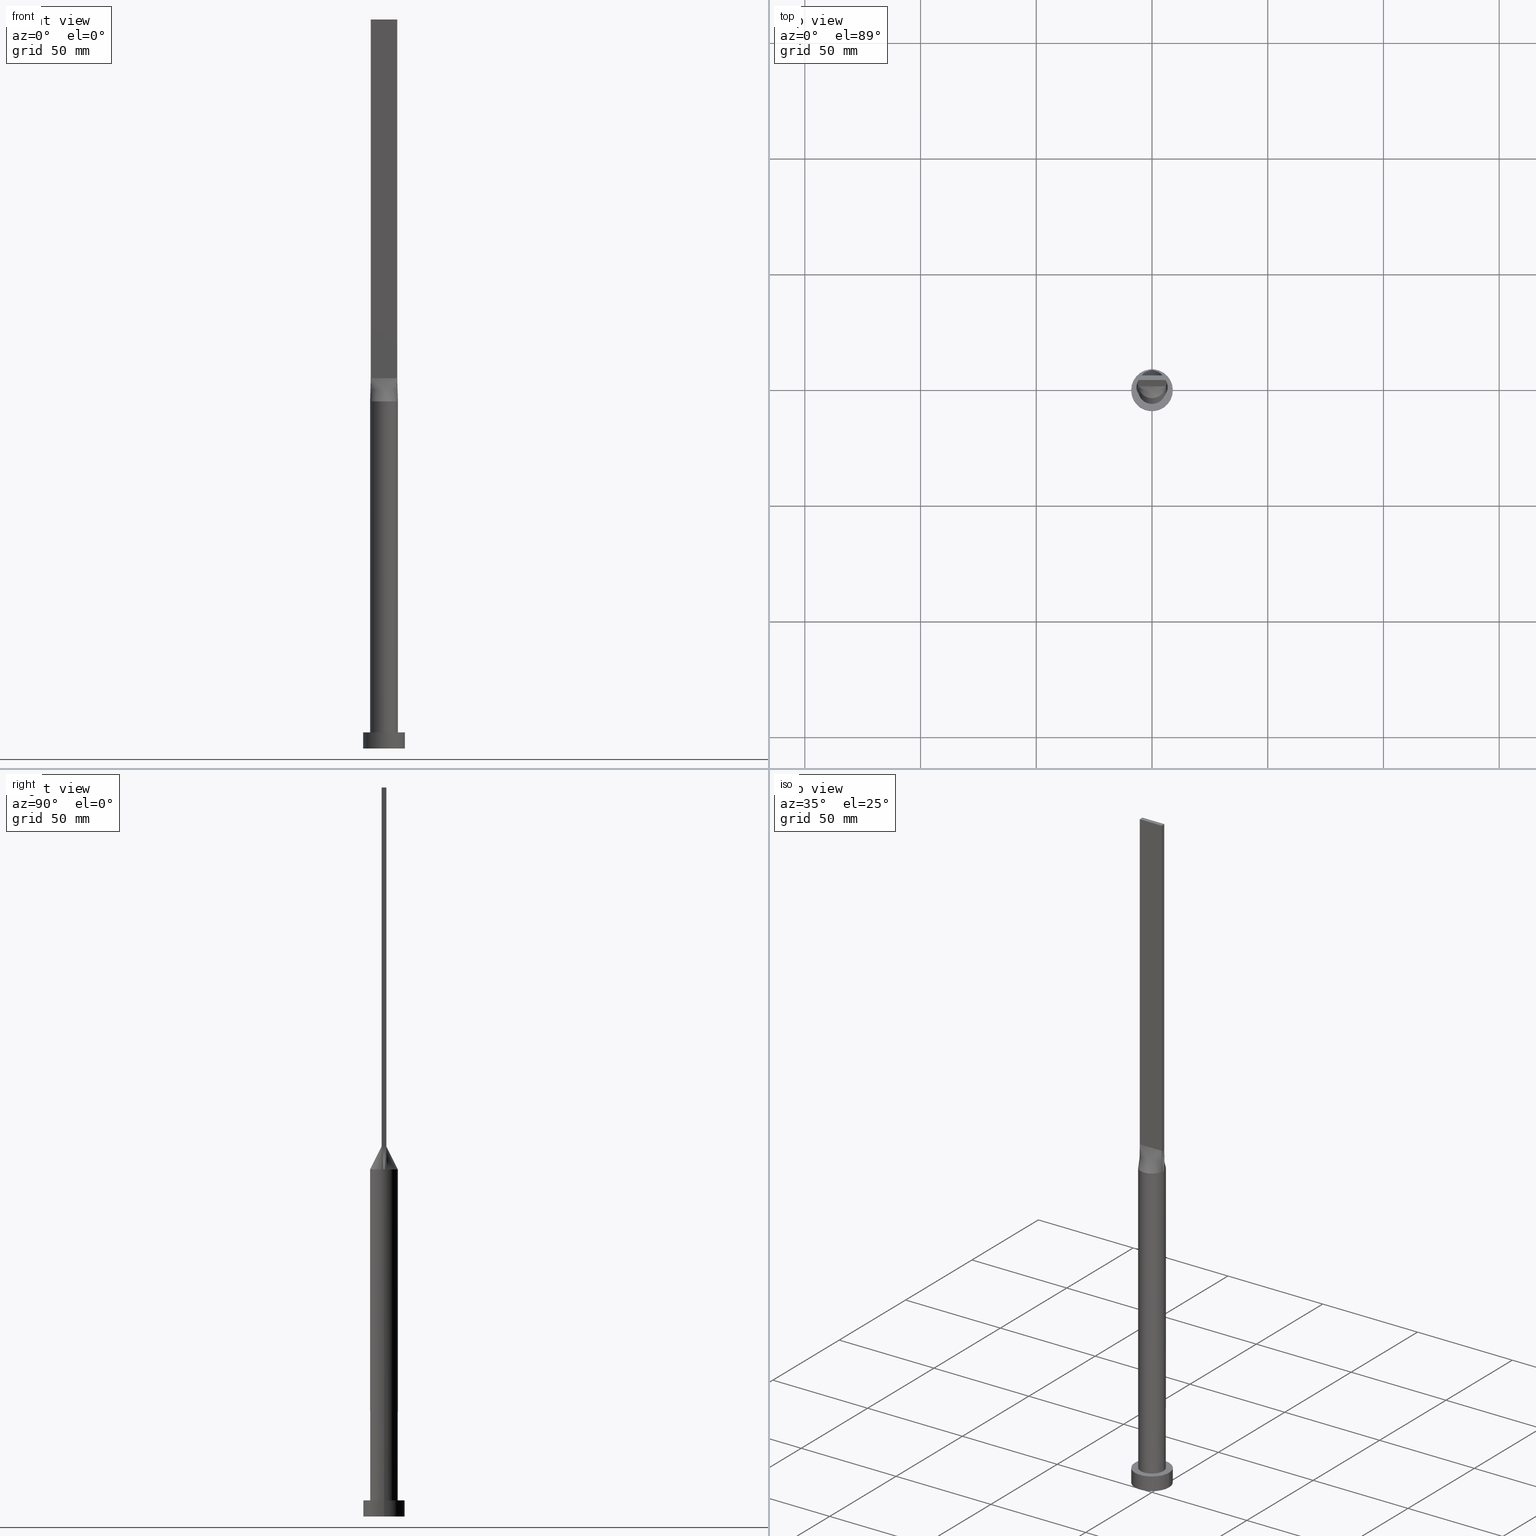
[diagram: canonical four-view strip — front | top / right | iso, engineering-drawing reading convention]
A machine part, canonical four-view strip (front | top / right | iso — engineering-drawing reading convention). The complete STEP part file that produces these views, byte-faithful:
ISO-10303-21;
HEADER;
FILE_DESCRIPTION (( 'STEP AP203' ),
    '1' );
FILE_NAME ('7a9d.STEP',
    '2023-02-13T08:51:24',
    ( '' ),
    ( '' ),
    'SwSTEP 2.0',
    'SolidWorks 2019',
    '' );
FILE_SCHEMA (( 'CONFIG_CONTROL_DESIGN' ));
ENDSEC;

DATA;
#1 = LINE ( 'NONE', #150, #104 ) ;
#2 = ADVANCED_FACE ( 'NONE', ( #609, #332 ), #182, .T. ) ;
#3 = PERSON_AND_ORGANIZATION ( #94, #419 ) ;
#4 = CARTESIAN_POINT ( 'NONE',  ( 5.155904004142093378, 3.127085030567957169, 150.0000000000000000 ) ) ;
#5 = ADVANCED_FACE ( 'NONE', ( #84 ), #78, .T. ) ;
#6 = CARTESIAN_POINT ( 'NONE',  ( 1.677083333333330817, 1.000000000000000000, 159.9999999999999716 ) ) ;
#7 = ORIENTED_EDGE ( 'NONE', *, *, #254, .F. ) ;
#8 = CARTESIAN_POINT ( 'NONE',  ( -4.791666666666667851, 1.000000000000000000, 160.0000000000000000 ) ) ;
#9 = VERTEX_POINT ( 'NONE', #185 ) ;
#10 = EDGE_CURVE ( 'NONE', #406, #203, #491, .T. ) ;
#11 = LINE ( 'NONE', #212, #25 ) ;
#12 = CIRCLE ( 'NONE', #583, 6.000000000000000888 ) ;
#13 = CC_DESIGN_PERSON_AND_ORGANIZATION_ASSIGNMENT ( #613, #620, ( #329 ) ) ;
#14 = CARTESIAN_POINT ( 'NONE',  ( -1.197916666666665186, -0.9999999999999991118, 159.9999999999999716 ) ) ;
#15 = EDGE_LOOP ( 'NONE', ( #252, #585 ) ) ;
#16 = CARTESIAN_POINT ( 'NONE',  ( 5.674157483178163375, 2.041064365575945061, 150.0000000000000000 ) ) ;
#17 = EDGE_CURVE ( 'NONE', #111, #331, #187, .T. ) ;
#18 = CARTESIAN_POINT ( 'NONE',  ( -4.791666666666666075, -0.9999999999999988898, 160.0000000000000000 ) ) ;
#19 = VERTEX_POINT ( 'NONE', #179 ) ;
#20 = CARTESIAN_POINT ( 'NONE',  ( 5.750000000000000000, 1.000000000000000000, 160.0000000000000000 ) ) ;
#21 = ADVANCED_FACE ( 'NONE', ( #277 ), #153, .T. ) ;
#22 = CARTESIAN_POINT ( 'NONE',  ( -0.4205485882577738588, -6.000000000000000888, 150.0000000000000284 ) ) ;
#23 = VERTEX_POINT ( 'NONE', #30 ) ;
#24 = CARTESIAN_POINT ( 'NONE',  ( 0.000000000000000000, 0.000000000000000000, 150.0000000000000000 ) ) ;
#25 = VECTOR ( 'NONE', #123, 1000.000000000000000 ) ;
#26 = CARTESIAN_POINT ( 'NONE',  ( 5.750000000000000000, -0.9999999999999997780, 315.0000000000000000 ) ) ;
#27 = ORIENTED_EDGE ( 'NONE', *, *, #58, .T. ) ;
#28 = CARTESIAN_POINT ( 'NONE',  ( 2.785082292717041330, 5.329682650394847343, 150.0000000000000000 ) ) ;
#29 = DIRECTION ( 'NONE',  ( 0.000000000000000000, 0.000000000000000000, 1.000000000000000000 ) ) ;
#30 = CARTESIAN_POINT ( 'NONE',  ( -5.750000000000000000, 1.000000000000000000, 315.0000000000000000 ) ) ;
#31 = VERTEX_POINT ( 'NONE', #367 ) ;
#32 = LINE ( 'NONE', #43, #582 ) ;
#33 = CARTESIAN_POINT ( 'NONE',  ( -5.830635264459023581, -1.014023524253742092, 155.0000000000000000 ) ) ;
#34 = AXIS2_PLACEMENT_3D ( 'NONE', #416, #602, #605 ) ;
#35 = APPLICATION_CONTEXT ( 'configuration controlled 3d designs of mechanical parts and assemblies' ) ;
#36 = EDGE_CURVE ( 'NONE', #135, #552, #221, .T. ) ;
#37 = DIRECTION ( 'NONE',  ( 1.000000000000000000, 0.000000000000000000, -0.000000000000000000 ) ) ;
#38 = DIRECTION ( 'NONE',  ( -0.000000000000000000, -0.000000000000000000, -1.000000000000000000 ) ) ;
#39 = DIRECTION ( 'NONE',  ( 7.542275982507857147E-17, 1.000000000000000000, -0.000000000000000000 ) ) ;
#40 = ORIENTED_EDGE ( 'NONE', *, *, #598, .T. ) ;
#41 = ORIENTED_EDGE ( 'NONE', *, *, #420, .T. ) ;
#42 = EDGE_CURVE ( 'NONE', #116, #453, #474, .T. ) ;
#43 = CARTESIAN_POINT ( 'NONE',  ( 6.000000000000000888, 7.347880794884120722E-16, 150.0000000000000000 ) ) ;
#44 = CARTESIAN_POINT ( 'NONE',  ( 5.830635264459024469, 1.014023524253741648, 155.0000000000000000 ) ) ;
#45 = APPROVAL_PERSON_ORGANIZATION ( #432, #461, #439 ) ;
#46 = CARTESIAN_POINT ( 'NONE',  ( 5.826866859193277293, 1.513368149424917153, 150.0000000000000284 ) ) ;
#47 = CIRCLE ( 'NONE', #34, 6.000000000000000888 ) ;
#48 = ORIENTED_EDGE ( 'NONE', *, *, #435, .F. ) ;
#49 = CARTESIAN_POINT ( 'NONE',  ( 5.674157483178163375, 2.041064365575945061, 150.0000000000000000 ) ) ;
#50 = COORDINATED_UNIVERSAL_TIME_OFFSET ( 1, 0, .AHEAD. ) ;
#51 = CARTESIAN_POINT ( 'NONE',  ( 0.2395833333333300952, 1.000000000000000000, 159.9999999999999716 ) ) ;
#52 = PERSON_AND_ORGANIZATION_ROLE ( 'design_owner' ) ;
#53 = DIRECTION ( 'NONE',  ( 0.000000000000000000, 0.000000000000000000, 1.000000000000000000 ) ) ;
#54 = AXIS2_PLACEMENT_3D ( 'NONE', #133, #523, #472 ) ;
#55 = CC_DESIGN_SECURITY_CLASSIFICATION ( #293, ( #85 ) ) ;
#56 = CARTESIAN_POINT ( 'NONE',  ( 0.000000000000000000, 0.000000000000000000, 150.0000000000000000 ) ) ;
#57 = B_SPLINE_SURFACE_WITH_KNOTS ( 'NONE', 3, 1, ( 
 ( #225, #127 ),
 ( #466, #89 ),
 ( #365, #371 ),
 ( #222, #270 ),
 ( #320, #418 ),
 ( #414, #429 ) ),
 .UNSPECIFIED., .F., .F., .F.,
 ( 4, 2, 4 ),
 ( 2, 2 ),
 ( 0.000000000000000000, 0.5000000000000000000, 1.000000000000000000 ),
 ( 0.000000000000000000, 1.000000000000000000 ),
 .UNSPECIFIED. ) ;
#58 = EDGE_CURVE ( 'NONE', #23, #135, #427, .T. ) ;
#59 = LINE ( 'NONE', #72, #336 ) ;
#60 = CARTESIAN_POINT ( 'NONE',  ( -5.911281259919041631, 1.028048927730119244, 150.0000000000000000 ) ) ;
#61 = CARTESIAN_POINT ( 'NONE',  ( -3.354166666666664742, -0.9999999999999991118, 159.9999999999999716 ) ) ;
#62 = ORIENTED_EDGE ( 'NONE', *, *, #471, .F. ) ;
#63 = CARTESIAN_POINT ( 'NONE',  ( 5.750000000000000000, -0.9999999999999997780, 315.0000000000000000 ) ) ;
#64 = AXIS2_PLACEMENT_3D ( 'NONE', #63, #451, #165 ) ;
#65 = CARTESIAN_POINT ( 'NONE',  ( -0.8409966403356965436, 5.955311887059998810, 150.0000000000000568 ) ) ;
#66 = ORIENTED_EDGE ( 'NONE', *, *, #383, .F. ) ;
#67 = FACE_OUTER_BOUND ( 'NONE', #505, .T. ) ;
#68 = APPROVAL ( #190, 'NEUR�EN�' ) ;
#69 = CARTESIAN_POINT ( 'NONE',  ( -2.785082292717044439, -5.329682650394844678, 149.9999999999999716 ) ) ;
#70 = ORIENTED_EDGE ( 'NONE', *, *, #273, .T. ) ;
#71 = DIRECTION ( 'NONE',  ( 1.000000000000000000, 0.000000000000000000, 0.000000000000000000 ) ) ;
#72 = CARTESIAN_POINT ( 'NONE',  ( -5.750000000000000000, 1.000000000000000000, 315.0000000000000000 ) ) ;
#73 = ORIENTED_EDGE ( 'NONE', *, *, #79, .T. ) ;
#74 = DIRECTION ( 'NONE',  ( -0.000000000000000000, -0.000000000000000000, -1.000000000000000000 ) ) ;
#75 = ORIENTED_EDGE ( 'NONE', *, *, #598, .F. ) ;
#76 = B_SPLINE_CURVE_WITH_KNOTS ( 'NONE', 3,
 ( #591, #266, #16, #500, #359, #490, #161, #205, #28, #250, #117, #586, #158, #219, #351, #410, #262, #355, #542, #599, #594, #170, #112, #486, #550, #60 ),
 .UNSPECIFIED., .F., .F.,
 ( 4, 2, 2, 2, 2, 2, 2, 2, 2, 2, 2, 2, 4 ),
 ( 0.000000000000000000, 0.1250000000000000000, 0.2500000000000000000, 0.3125000000000000000, 0.3750000000000000000, 0.4375000000000000000, 0.5000000000000000000, 0.5625000000000000000, 0.6250000000000000000, 0.6875000000000000000, 0.7500000000000000000, 0.8750000000000000000, 1.000000000000000000 ),
 .UNSPECIFIED. ) ;
#77 = CARTESIAN_POINT ( 'NONE',  ( 5.674157483178163375, -2.041064365575950390, 150.0000000000000284 ) ) ;
#78 = CYLINDRICAL_SURFACE ( 'NONE', #155, 9.000000000000000000 ) ;
#79 = EDGE_CURVE ( 'NONE', #207, #31, #324, .T. ) ;
#80 = FACE_OUTER_BOUND ( 'NONE', #137, .T. ) ;
#81 = CARTESIAN_POINT ( 'NONE',  ( 0.000000000000000000, 0.000000000000000000, 7.000000000000000000 ) ) ;
#82 = PLANE ( 'NONE',  #366 ) ;
#83 = CARTESIAN_POINT ( 'NONE',  ( 5.155904004142090713, -3.127085030567962498, 150.0000000000000000 ) ) ;
#84 = FACE_OUTER_BOUND ( 'NONE', #278, .T. ) ;
#85 = PRODUCT_DEFINITION_FORMATION_WITH_SPECIFIED_SOURCE ( 'LIBOVOLN�', '', #588, .NOT_KNOWN. ) ;
#86 = DIRECTION ( 'NONE',  ( -1.000000000000000000, 7.542275982507857147E-17, 0.000000000000000000 ) ) ;
#87 = CARTESIAN_POINT ( 'NONE',  ( 4.038230363771777576, -4.452009983475586630, 149.9999999999999147 ) ) ;
#88 = DIRECTION ( 'NONE',  ( 0.000000000000000000, -1.000000000000000000, 0.000000000000000000 ) ) ;
#89 = CARTESIAN_POINT ( 'NONE',  ( -5.750000000000000000, 0.6666666666666667407, 159.9999999999999716 ) ) ;
#90 = EDGE_LOOP ( 'NONE', ( #164, #545, #189, #286 ) ) ;
#91 = DATE_AND_TIME ( #101, #492 ) ;
#92 = CARTESIAN_POINT ( 'NONE',  ( 5.750000000000000000, 1.000000000000000000, 315.0000000000000000 ) ) ;
#93 = CYLINDRICAL_SURFACE ( 'NONE', #535, 6.000000000000000888 ) ;
#94 = PERSON ( 'NEUR�EN�', 'NEUR�EN�', 'NEUR�EN�', ('NEUR�EN�'), ('NEUR�EN�'), ('NEUR�EN�') ) ;
#95 = VECTOR ( 'NONE', #229, 1000.000000000000114 ) ;
#96 = CIRCLE ( 'NONE', #188, 6.000000000000000888 ) ;
#97 = CARTESIAN_POINT ( 'NONE',  ( 0.9583333333333304838, 1.000000000000000000, 159.9999999999999716 ) ) ;
#98 = EDGE_LOOP ( 'NONE', ( #353, #66 ) ) ;
#99 = CALENDAR_DATE ( 2023, 13, 2 ) ;
#100 = CARTESIAN_POINT ( 'NONE',  ( 0.000000000000000000, 0.000000000000000000, 150.0000000000000000 ) ) ;
#101 = CALENDAR_DATE ( 2023, 13, 2 ) ;
#102 = DIRECTION ( 'NONE',  ( 1.000000000000000000, 0.000000000000000000, 0.000000000000000000 ) ) ;
#103 = CARTESIAN_POINT ( 'NONE',  ( -5.750000000000000000, 1.000000000000000000, 160.0000000000000000 ) ) ;
#104 = VECTOR ( 'NONE', #381, 1000.000000000000000 ) ;
#105 = CARTESIAN_POINT ( 'NONE',  ( -0.8409966403356993192, -5.955311887060000586, 150.0000000000000284 ) ) ;
#106 = CARTESIAN_POINT ( 'NONE',  ( -1.677083333333336368, 1.000000000000000000, 159.9999999999999716 ) ) ;
#107 = ORIENTED_EDGE ( 'NONE', *, *, #36, .F. ) ;
#108 = FACE_OUTER_BOUND ( 'NONE', #90, .T. ) ;
#109 = B_SPLINE_SURFACE_WITH_KNOTS ( 'NONE', 3, 1, ( 
 ( #294, #192 ),
 ( #46, #440 ),
 ( #49, #342 ),
 ( #4, #199 ),
 ( #525, #239 ),
 ( #571, #388 ),
 ( #142, #533 ),
 ( #152, #441 ),
 ( #148, #6 ),
 ( #288, #200 ),
 ( #335, #97 ),
 ( #240, #576 ),
 ( #436, #51 ),
 ( #621, #210 ),
 ( #65, #442 ),
 ( #296, #349 ),
 ( #306, #352 ),
 ( #260, #106 ),
 ( #213, #544 ),
 ( #202, #263 ),
 ( #485, #455 ),
 ( #592, #115 ),
 ( #248, #163 ),
 ( #537, #8 ),
 ( #396, #498 ),
 ( #501, #159 ) ),
 .UNSPECIFIED., .F., .F., .F.,
 ( 4, 2, 2, 2, 2, 2, 2, 2, 2, 2, 2, 2, 4 ),
 ( 2, 2 ),
 ( 0.000000000000000000, 0.1250000000000000000, 0.2500000000000000000, 0.3125000000000000000, 0.3750000000000000000, 0.4375000000000000000, 0.5000000000000000000, 0.5625000000000000000, 0.6250000000000000000, 0.6875000000000000000, 0.7500000000000000000, 0.8750000000000000000, 1.000000000000000000 ),
 ( 0.000000000000000000, 1.000000000000000000 ),
 .UNSPECIFIED. ) ;
#110 = CARTESIAN_POINT ( 'NONE',  ( -5.826866859193279957, -1.513368149424916931, 150.0000000000000568 ) ) ;
#111 = VERTEX_POINT ( 'NONE', #515 ) ;
#112 = CARTESIAN_POINT ( 'NONE',  ( -5.155904004142094266, 3.127085030567958501, 150.0000000000000000 ) ) ;
#113 = VECTOR ( 'NONE', #74, 1000.000000000000000 ) ;
#114 = AXIS2_PLACEMENT_3D ( 'NONE', #325, #131, #516 ) ;
#115 = CARTESIAN_POINT ( 'NONE',  ( -3.354166666666669627, 1.000000000000000000, 160.0000000000000284 ) ) ;
#116 = VERTEX_POINT ( 'NONE', #470 ) ;
#117 = CARTESIAN_POINT ( 'NONE',  ( 1.654707822076785684, 5.782296865845954592, 150.0000000000000853 ) ) ;
#118 = CARTESIAN_POINT ( 'NONE',  ( 2.047812955694711778, -5.654083712646525761, 149.9999999999999432 ) ) ;
#119 = ORIENTED_EDGE ( 'NONE', *, *, #162, .F. ) ;
#120 = CARTESIAN_POINT ( 'NONE',  ( -5.750000000000000000, -0.9999999999999988898, 160.0000000000000000 ) ) ;
#121 = EDGE_CURVE ( 'NONE', #430, #331, #275, .T. ) ;
#122 = ORIENTED_EDGE ( 'NONE', *, *, #144, .F. ) ;
#123 = DIRECTION ( 'NONE',  ( 1.000000000000000000, -7.542275982507857147E-17, 0.000000000000000000 ) ) ;
#124 = LOCAL_TIME ( 9, 51, 24.00000000000000000, #198 ) ;
#125 = APPLICATION_PROTOCOL_DEFINITION ( 'international standard', 'config_control_design', 1994, #497 ) ;
#126 = CARTESIAN_POINT ( 'NONE',  ( 5.750000000000000000, -1.000000000000000000, 160.0000000000000000 ) ) ;
#127 = CARTESIAN_POINT ( 'NONE',  ( -5.750000000000000000, 1.000000000000000000, 160.0000000000000000 ) ) ;
#128 = DIRECTION ( 'NONE',  ( 0.000000000000000000, 0.000000000000000000, 1.000000000000000000 ) ) ;
#129 = CARTESIAN_POINT ( 'NONE',  ( 0.000000000000000000, 0.000000000000000000, 0.000000000000000000 ) ) ;
#130 = CARTESIAN_POINT ( 'NONE',  ( 5.750000000000000000, 0.6666666666666667407, 159.9999999999999716 ) ) ;
#131 = DIRECTION ( 'NONE',  ( 0.000000000000000000, 0.000000000000000000, 1.000000000000000000 ) ) ;
#132 = DIRECTION ( 'NONE',  ( -0.000000000000000000, -0.000000000000000000, -1.000000000000000000 ) ) ;
#133 = CARTESIAN_POINT ( 'NONE',  ( 5.750000000000000000, 1.000000000000000000, 315.0000000000000000 ) ) ;
#134 = CARTESIAN_POINT ( 'NONE',  ( 0.000000000000000000, 0.000000000000000000, 7.000000000000000000 ) ) ;
#135 = VERTEX_POINT ( 'NONE', #563 ) ;
#136 = CALENDAR_DATE ( 2023, 13, 2 ) ;
#137 = EDGE_LOOP ( 'NONE', ( #400, #27, #261, #600 ) ) ;
#138 = DIRECTION ( 'NONE',  ( 0.000000000000000000, 0.000000000000000000, 1.000000000000000000 ) ) ;
#139 = ADVANCED_FACE ( 'NONE', ( #330 ), #519, .F. ) ;
#140 = APPROVAL_STATUS ( 'not_yet_approved' ) ;
#141 = CARTESIAN_POINT ( 'NONE',  ( -5.830635264459023581, 1.014023524253742758, 155.0000000000000000 ) ) ;
#142 = CARTESIAN_POINT ( 'NONE',  ( 3.755743307515265084, 4.694751915224760097, 150.0000000000000000 ) ) ;
#143 = ORIENTED_EDGE ( 'NONE', *, *, #254, .T. ) ;
#144 = EDGE_CURVE ( 'NONE', #453, #331, #616, .T. ) ;
#145 = COORDINATED_UNIVERSAL_TIME_OFFSET ( 1, 0, .AHEAD. ) ;
#146 = AXIS2_PLACEMENT_3D ( 'NONE', #509, #460, #604 ) ;
#147 = AXIS2_PLACEMENT_3D ( 'NONE', #100, #484, #285 ) ;
#148 = CARTESIAN_POINT ( 'NONE',  ( 2.785082292717041330, 5.329682650394847343, 150.0000000000000000 ) ) ;
#149 = DATE_AND_TIME ( #233, #394 ) ;
#150 = CARTESIAN_POINT ( 'NONE',  ( -5.750000000000000000, 1.000000000000000000, 160.0000000000000000 ) ) ;
#151 = DATE_TIME_ROLE ( 'creation_date' ) ;
#152 = CARTESIAN_POINT ( 'NONE',  ( 3.129188161608685181, 5.133661927581551154, 150.0000000000000000 ) ) ;
#153 = B_SPLINE_SURFACE_WITH_KNOTS ( 'NONE', 3, 1, ( 
 ( #462, #126 ),
 ( #230, #603 ),
 ( #372, #508 ),
 ( #560, #175 ),
 ( #363, #130 ),
 ( #568, #234 ) ),
 .UNSPECIFIED., .F., .F., .F.,
 ( 4, 2, 4 ),
 ( 2, 2 ),
 ( 0.000000000000000000, 0.5000000000000000000, 1.000000000000000000 ),
 ( 0.000000000000000000, 1.000000000000000000 ),
 .UNSPECIFIED. ) ;
#154 = DIRECTION ( 'NONE',  ( -0.000000000000000000, -0.000000000000000000, -1.000000000000000000 ) ) ;
#155 = AXIS2_PLACEMENT_3D ( 'NONE', #81, #612, #606 ) ;
#156 = CARTESIAN_POINT ( 'NONE',  ( -5.674157483178165151, -2.041064365575944173, 150.0000000000000000 ) ) ;
#157 = ORIENTED_EDGE ( 'NONE', *, *, #348, .T. ) ;
#158 = CARTESIAN_POINT ( 'NONE',  ( 0.4205485882577719159, 6.000000000000000000, 150.0000000000000568 ) ) ;
#159 = CARTESIAN_POINT ( 'NONE',  ( -5.750000000000000000, 1.000000000000000000, 160.0000000000000000 ) ) ;
#160 = VERTEX_POINT ( 'NONE', #191 ) ;
#161 = CARTESIAN_POINT ( 'NONE',  ( 3.755743307515265084, 4.694751915224760097, 150.0000000000000000 ) ) ;
#162 = EDGE_CURVE ( 'NONE', #430, #23, #238, .T. ) ;
#163 = CARTESIAN_POINT ( 'NONE',  ( -3.833333333333336146, 1.000000000000000000, 160.0000000000000284 ) ) ;
#164 = ORIENTED_EDGE ( 'NONE', *, *, #17, .T. ) ;
#165 = DIRECTION ( 'NONE',  ( 0.000000000000000000, 0.000000000000000000, 1.000000000000000000 ) ) ;
#166 = APPROVAL_PERSON_ORGANIZATION ( #194, #68, #376 ) ;
#167 = CARTESIAN_POINT ( 'NONE',  ( -0.2395833333333333148, -0.9999999999999991118, 160.0000000000000000 ) ) ;
#168 = EDGE_LOOP ( 'NONE', ( #494, #157, #488, #450, #173, #569 ) ) ;
#169 = EDGE_CURVE ( 'NONE', #235, #593, #380, .T. ) ;
#170 = CARTESIAN_POINT ( 'NONE',  ( -4.788055724916949529, 3.685825800347683590, 150.0000000000000000 ) ) ;
#171 = ADVANCED_FACE ( 'NONE', ( #67 ), #601, .F. ) ;
#172 = LINE ( 'NONE', #504, #395 ) ;
#173 = ORIENTED_EDGE ( 'NONE', *, *, #482, .F. ) ;
#174 = CYLINDRICAL_SURFACE ( 'NONE', #253, 6.000000000000000888 ) ;
#175 = CARTESIAN_POINT ( 'NONE',  ( 5.750000000000000000, 0.3333333333333335369, 159.9999999999999716 ) ) ;
#176 = DIRECTION ( 'NONE',  ( 1.000000000000000000, 0.000000000000000000, 0.000000000000000000 ) ) ;
#177 = VECTOR ( 'NONE', #570, 1000.000000000000114 ) ;
#178 = LOCAL_TIME ( 9, 51, 24.00000000000000000, #387 ) ;
#179 = CARTESIAN_POINT ( 'NONE',  ( -6.000000000000000888, 0.000000000000000000, 7.000000000000000000 ) ) ;
#180 = FACE_OUTER_BOUND ( 'NONE', #597, .T. ) ;
#181 = CARTESIAN_POINT ( 'NONE',  ( 3.354166666666666075, -0.9999999999999993339, 160.0000000000000284 ) ) ;
#182 = PLANE ( 'NONE',  #481 ) ;
#183 = ORIENTED_EDGE ( 'NONE', *, *, #79, .F. ) ;
#184 = CARTESIAN_POINT ( 'NONE',  ( -5.750000000000000000, 1.000000000000000000, 160.0000000000000000 ) ) ;
#185 = CARTESIAN_POINT ( 'NONE',  ( 9.000000000000000000, 1.102182119232617714E-15, 0.000000000000000000 ) ) ;
#186 = PERSON_AND_ORGANIZATION ( #94, #419 ) ;
#187 = LINE ( 'NONE', #377, #283 ) ;
#188 = AXIS2_PLACEMENT_3D ( 'NONE', #478, #138, #480 ) ;
#189 = ORIENTED_EDGE ( 'NONE', *, *, #521, .F. ) ;
#190 = APPROVAL_STATUS ( 'not_yet_approved' ) ;
#191 = CARTESIAN_POINT ( 'NONE',  ( 5.911281968884419591, -1.028049053400068802, 150.0000000000000000 ) ) ;
#192 = CARTESIAN_POINT ( 'NONE',  ( 5.750000000000000000, 1.000000000000000000, 160.0000000000000000 ) ) ;
#193 = ADVANCED_FACE ( 'NONE', ( #259 ), #174, .T. ) ;
#194 = PERSON_AND_ORGANIZATION ( #94, #419 ) ;
#195 = FACE_OUTER_BOUND ( 'NONE', #590, .T. ) ;
#196 = CIRCLE ( 'NONE', #566, 6.000000000000000888 ) ;
#197 = DIRECTION ( 'NONE',  ( 1.000000000000000000, 0.000000000000000000, 0.000000000000000000 ) ) ;
#198 = COORDINATED_UNIVERSAL_TIME_OFFSET ( 1, 0, .AHEAD. ) ;
#199 = CARTESIAN_POINT ( 'NONE',  ( 3.833333333333331705, 1.000000000000000000, 159.9999999999999716 ) ) ;
#200 = CARTESIAN_POINT ( 'NONE',  ( 1.197916666666664076, 1.000000000000000000, 159.9999999999999716 ) ) ;
#201 = EDGE_LOOP ( 'NONE', ( #502, #443, #62, #122 ) ) ;
#202 = CARTESIAN_POINT ( 'NONE',  ( -3.755743307515264195, 4.694751915224762762, 150.0000000000000568 ) ) ;
#203 = VERTEX_POINT ( 'NONE', #347 ) ;
#204 = VECTOR ( 'NONE', #312, 1000.000000000000000 ) ;
#205 = CARTESIAN_POINT ( 'NONE',  ( 3.129188161608685181, 5.133661927581551154, 150.0000000000000000 ) ) ;
#206 = CARTESIAN_POINT ( 'NONE',  ( -1.654707822076787016, -5.782296865845954592, 149.9999999999999716 ) ) ;
#207 = VERTEX_POINT ( 'NONE', #120 ) ;
#208 = CARTESIAN_POINT ( 'NONE',  ( -5.750000000000000000, 1.000000000000000000, 315.0000000000000000 ) ) ;
#209 = PRODUCT_DEFINITION_SHAPE ( 'NONE', 'NONE',  #329 ) ;
#210 = CARTESIAN_POINT ( 'NONE',  ( -0.2395833333333365622, 1.000000000000000000, 159.9999999999999716 ) ) ;
#211 = ORIENTED_EDGE ( 'NONE', *, *, #489, .F. ) ;
#212 = CARTESIAN_POINT ( 'NONE',  ( -5.750000000000000000, -0.9999999999999988898, 160.0000000000000000 ) ) ;
#213 = CARTESIAN_POINT ( 'NONE',  ( -3.129188161608685181, 5.133661927581553819, 150.0000000000000000 ) ) ;
#214 = EDGE_LOOP ( 'NONE', ( #447, #422, #611, #73 ) ) ;
#215 = DIRECTION ( 'NONE',  ( -0.000000000000000000, -0.000000000000000000, -1.000000000000000000 ) ) ;
#216 = VECTOR ( 'NONE', #38, 1000.000000000000000 ) ;
#217 = CARTESIAN_POINT ( 'NONE',  ( -3.833333333333331705, -0.9999999999999991118, 159.9999999999999716 ) ) ;
#218 = ORIENTED_EDGE ( 'NONE', *, *, #383, .T. ) ;
#219 = CARTESIAN_POINT ( 'NONE',  ( -0.4205485882577720824, 6.000000000000000888, 150.0000000000000284 ) ) ;
#220 = CARTESIAN_POINT ( 'NONE',  ( 3.129188161608682073, -5.133661927581553819, 149.9999999999999716 ) ) ;
#221 = LINE ( 'NONE', #555, #506 ) ;
#222 = CARTESIAN_POINT ( 'NONE',  ( -5.999343923413460899, -0.3452161848042010761, 150.0000000000000000 ) ) ;
#223 = CARTESIAN_POINT ( 'NONE',  ( 3.755743307515260643, -4.694751915224761873, 150.0000000000000000 ) ) ;
#224 = ORIENTED_EDGE ( 'NONE', *, *, #58, .F. ) ;
#225 = CARTESIAN_POINT ( 'NONE',  ( -5.911270528918048051, 1.028047048507486849, 150.0000000000000000 ) ) ;
#226 = AXIS2_PLACEMENT_3D ( 'NONE', #129, #561, #176 ) ;
#227 = APPROVAL_PERSON_ORGANIZATION ( #3, #559, #532 ) ;
#228 = CARTESIAN_POINT ( 'NONE',  ( 0.000000000000000000, 0.000000000000000000, 0.000000000000000000 ) ) ;
#229 = DIRECTION ( 'NONE',  ( -0.01612489271847471900, -0.002804329168430368981, -0.9998660528154422744 ) ) ;
#230 = CARTESIAN_POINT ( 'NONE',  ( 5.969986125248322395, -0.6904323696084077033, 150.0000000000000000 ) ) ;
#231 = CARTESIAN_POINT ( 'NONE',  ( 6.000000000000000888, 7.347880794884120722E-16, 7.000000000000000000 ) ) ;
#232 = DESIGN_CONTEXT ( 'detailed design', #35, 'design' ) ;
#233 = CALENDAR_DATE ( 2023, 13, 2 ) ;
#234 = CARTESIAN_POINT ( 'NONE',  ( 5.750000000000000000, 1.000000000000000000, 160.0000000000000000 ) ) ;
#235 = VERTEX_POINT ( 'NONE', #444 ) ;
#236 = VECTOR ( 'NONE', #433, 1000.000000000000000 ) ;
#237 = ADVANCED_BREP_SHAPE_REPRESENTATION ( '7a9d', ( #291, #517 ), #245 ) ;
#238 = LINE ( 'NONE', #92, #236 ) ;
#239 = CARTESIAN_POINT ( 'NONE',  ( 3.354166666666665186, 1.000000000000000000, 159.9999999999999716 ) ) ;
#240 = CARTESIAN_POINT ( 'NONE',  ( 0.8409966403356972098, 5.955311887059998810, 150.0000000000001137 ) ) ;
#241 = APPROVAL_STATUS ( 'not_yet_approved' ) ;
#242 = DIRECTION ( 'NONE',  ( 1.000000000000000000, -1.332267629550187849E-14, 0.000000000000000000 ) ) ;
#243 = MECHANICAL_CONTEXT ( 'NONE', #497, 'mechanical' ) ;
#244 = AXIS2_PLACEMENT_3D ( 'NONE', #511, #370, #417 ) ;
#245 =( GEOMETRIC_REPRESENTATION_CONTEXT ( 3 ) GLOBAL_UNCERTAINTY_ASSIGNED_CONTEXT ( ( #279 ) ) GLOBAL_UNIT_ASSIGNED_CONTEXT ( ( #518, #557, #321 ) ) REPRESENTATION_CONTEXT ( 'NONE', 'WORKASPACE' ) );
#246 = CARTESIAN_POINT ( 'NONE',  ( 5.830635264459022693, -1.014023524253744313, 155.0000000000000000 ) ) ;
#247 = CARTESIAN_POINT ( 'NONE',  ( 0.000000000000000000, 0.000000000000000000, 150.0000000000000000 ) ) ;
#248 = CARTESIAN_POINT ( 'NONE',  ( -5.155904004142094266, 3.127085030567958501, 150.0000000000000000 ) ) ;
#249 = ORIENTED_EDGE ( 'NONE', *, *, #348, .F. ) ;
#250 = CARTESIAN_POINT ( 'NONE',  ( 2.047812955694715331, 5.654083712646525761, 150.0000000000000284 ) ) ;
#251 = CARTESIAN_POINT ( 'NONE',  ( -4.038230363771782017, -4.452009983475583077, 149.9999999999999432 ) ) ;
#252 = ORIENTED_EDGE ( 'NONE', *, *, #334, .T. ) ;
#253 = AXIS2_PLACEMENT_3D ( 'NONE', #24, #300, #401 ) ;
#254 = EDGE_CURVE ( 'NONE', #203, #272, #255, .T. ) ;
#255 = LINE ( 'NONE', #553, #204 ) ;
#256 = SHAPE_DEFINITION_REPRESENTATION ( #209, #237 ) ;
#257 = CARTESIAN_POINT ( 'NONE',  ( 1.654707822076783019, -5.782296865845954592, 149.9999999999999716 ) ) ;
#258 = ORIENTED_EDGE ( 'NONE', *, *, #618, .F. ) ;
#259 = FACE_OUTER_BOUND ( 'NONE', #168, .T. ) ;
#260 = CARTESIAN_POINT ( 'NONE',  ( -2.785082292717042218, 5.329682650394847343, 150.0000000000000000 ) ) ;
#261 = ORIENTED_EDGE ( 'NONE', *, *, #36, .T. ) ;
#262 = CARTESIAN_POINT ( 'NONE',  ( -2.047812955694715775, 5.654083712646525761, 149.9999999999999716 ) ) ;
#263 = CARTESIAN_POINT ( 'NONE',  ( -2.395833333333336590, 1.000000000000000000, 160.0000000000000284 ) ) ;
#264 = ORIENTED_EDGE ( 'NONE', *, *, #507, .F. ) ;
#265 = CC_DESIGN_DATE_AND_TIME_ASSIGNMENT ( #91, #479, ( #293 ) ) ;
#266 = CARTESIAN_POINT ( 'NONE',  ( 5.826866859193277293, 1.513368149424917153, 150.0000000000000284 ) ) ;
#267 = VECTOR ( 'NONE', #473, 1000.000000000000000 ) ;
#268 = CARTESIAN_POINT ( 'NONE',  ( 5.750000000000000000, -0.9999999999999997780, 160.0000000000000000 ) ) ;
#269 = CARTESIAN_POINT ( 'NONE',  ( 0.000000000000000000, 0.000000000000000000, 7.000000000000000000 ) ) ;
#270 = CARTESIAN_POINT ( 'NONE',  ( -5.750000000000000000, -0.3333333333333327042, 159.9999999999999716 ) ) ;
#271 = ORIENTED_EDGE ( 'NONE', *, *, #295, .F. ) ;
#272 = VERTEX_POINT ( 'NONE', #407 ) ;
#273 = EDGE_CURVE ( 'NONE', #207, #111, #11, .T. ) ;
#274 = FACE_OUTER_BOUND ( 'NONE', #98, .T. ) ;
#275 = LINE ( 'NONE', #468, #216 ) ;
#276 = CARTESIAN_POINT ( 'NONE',  ( 9.000000000000000000, 1.102182119232617714E-15, 7.000000000000000000 ) ) ;
#277 = FACE_OUTER_BOUND ( 'NONE', #538, .T. ) ;
#278 = EDGE_LOOP ( 'NONE', ( #619, #541, #218, #7 ) ) ;
#279 = UNCERTAINTY_MEASURE_WITH_UNIT (LENGTH_MEASURE( 1.000000000000000082E-05 ), #518, 'distance_accuracy_value', 'NONE');
#280 = EDGE_CURVE ( 'NONE', #409, #19, #458, .T. ) ;
#281 = DIRECTION ( 'NONE',  ( 0.01612489271847471900, -0.002804329168430282244, 0.9998660528154422744 ) ) ;
#282 = DIRECTION ( 'NONE',  ( -0.01612489271847463573, 0.002804329168430629189, 0.9998660528154422744 ) ) ;
#283 = VECTOR ( 'NONE', #459, 1000.000000000000000 ) ;
#284 = APPROVAL_DATE_TIME ( #575, #461 ) ;
#285 = DIRECTION ( 'NONE',  ( 1.000000000000000000, 0.000000000000000000, 0.000000000000000000 ) ) ;
#286 = ORIENTED_EDGE ( 'NONE', *, *, #295, .T. ) ;
#287 = PERSON_AND_ORGANIZATION_ROLE ( 'creator' ) ;
#288 = CARTESIAN_POINT ( 'NONE',  ( 2.047812955694715331, 5.654083712646525761, 150.0000000000000284 ) ) ;
#289 = CC_DESIGN_PERSON_AND_ORGANIZATION_ASSIGNMENT ( #530, #477, ( #293 ) ) ;
#290 = LINE ( 'NONE', #246, #556 ) ;
#291 = MANIFOLD_SOLID_BREP ( 'P�idat vysunut�m5', #364 ) ;
#292 = DIRECTION ( 'NONE',  ( 1.000000000000000000, 0.000000000000000000, 0.000000000000000000 ) ) ;
#293 = SECURITY_CLASSIFICATION ( '', '', #339 ) ;
#294 = CARTESIAN_POINT ( 'NONE',  ( 5.911270528918048051, 1.028047048507485961, 150.0000000000000000 ) ) ;
#295 = EDGE_CURVE ( 'NONE', #552, #111, #362, .T. ) ;
#296 = CARTESIAN_POINT ( 'NONE',  ( -1.654707822076785906, 5.782296865845955480, 150.0000000000000568 ) ) ;
#297 = EDGE_CURVE ( 'NONE', #453, #235, #76, .T. ) ;
#298 = CARTESIAN_POINT ( 'NONE',  ( -5.911270528918048051, -1.028047048507485295, 150.0000000000000000 ) ) ;
#299 = ORIENTED_EDGE ( 'NONE', *, *, #437, .T. ) ;
#300 = DIRECTION ( 'NONE',  ( -0.000000000000000000, -0.000000000000000000, -1.000000000000000000 ) ) ;
#301 = CARTESIAN_POINT ( 'NONE',  ( 0.8409966403356938791, -5.955311887059998810, 150.0000000000000000 ) ) ;
#302 = EDGE_LOOP ( 'NONE', ( #476, #549, #183, #456, #346 ) ) ;
#303 = AXIS2_PLACEMENT_3D ( 'NONE', #208, #454, #448 ) ;
#304 = CIRCLE ( 'NONE', #528, 9.000000000000000000 ) ;
#305 = CARTESIAN_POINT ( 'NONE',  ( 9.000000000000000000, 1.102182119232617714E-15, 7.000000000000000000 ) ) ;
#306 = CARTESIAN_POINT ( 'NONE',  ( -2.047812955694715775, 5.654083712646525761, 149.9999999999999716 ) ) ;
#307 = ORIENTED_EDGE ( 'NONE', *, *, #551, .F. ) ;
#308 = DIRECTION ( 'NONE',  ( 0.000000000000000000, 0.000000000000000000, 1.000000000000000000 ) ) ;
#309 = EDGE_CURVE ( 'NONE', #406, #9, #398, .T. ) ;
#310 = CARTESIAN_POINT ( 'NONE',  ( 1.197916666666666741, -0.9999999999999991118, 160.0000000000000000 ) ) ;
#311 = ORIENTED_EDGE ( 'NONE', *, *, #495, .F. ) ;
#312 = DIRECTION ( 'NONE',  ( -0.000000000000000000, -0.000000000000000000, -1.000000000000000000 ) ) ;
#313 = CARTESIAN_POINT ( 'NONE',  ( 4.791666666666666963, -0.9999999999999995559, 160.0000000000000284 ) ) ;
#314 = ORIENTED_EDGE ( 'NONE', *, *, #334, .F. ) ;
#315 = CIRCLE ( 'NONE', #226, 9.000000000000000000 ) ;
#316 = AXIS2_PLACEMENT_3D ( 'NONE', #134, #340, #338 ) ;
#317 = CC_DESIGN_PERSON_AND_ORGANIZATION_ASSIGNMENT ( #186, #52, ( #588 ) ) ;
#318 = CARTESIAN_POINT ( 'NONE',  ( 1.916666666666666297, -0.9999999999999991118, 160.0000000000000000 ) ) ;
#319 = DIRECTION ( 'NONE',  ( 1.000000000000000000, -7.542275982507857147E-17, 0.000000000000000000 ) ) ;
#320 = CARTESIAN_POINT ( 'NONE',  ( -5.969986125248324171, -0.6904323696084029294, 150.0000000000000000 ) ) ;
#321 =( NAMED_UNIT ( * ) SI_UNIT ( $, .STERADIAN. ) SOLID_ANGLE_UNIT ( ) );
#322 = CARTESIAN_POINT ( 'NONE',  ( -5.750000000000000000, 1.000000000000000000, 315.0000000000000000 ) ) ;
#323 = CARTESIAN_POINT ( 'NONE',  ( 2.785082292717038221, -5.329682650394847343, 149.9999999999999432 ) ) ;
#324 = LINE ( 'NONE', #33, #95 ) ;
#325 = CARTESIAN_POINT ( 'NONE',  ( 0.000000000000000000, 0.000000000000000000, 315.0000000000000000 ) ) ;
#326 = ADVANCED_FACE ( 'NONE', ( #108 ), #496, .F. ) ;
#327 = AXIS2_PLACEMENT_3D ( 'NONE', #558, #128, #465 ) ;
#328 = CC_DESIGN_APPROVAL ( #68, ( #85 ) ) ;
#329 = PRODUCT_DEFINITION ( 'NEZN�M�', '', #85, #232 ) ;
#330 = FACE_OUTER_BOUND ( 'NONE', #614, .T. ) ;
#331 = VERTEX_POINT ( 'NONE', #20 ) ;
#332 = FACE_OUTER_BOUND ( 'NONE', #15, .T. ) ;
#333 = CARTESIAN_POINT ( 'NONE',  ( 0.000000000000000000, 0.000000000000000000, 0.000000000000000000 ) ) ;
#334 = EDGE_CURVE ( 'NONE', #203, #406, #534, .T. ) ;
#335 = CARTESIAN_POINT ( 'NONE',  ( 1.654707822076785684, 5.782296865845954592, 150.0000000000000853 ) ) ;
#336 = VECTOR ( 'NONE', #154, 1000.000000000000000 ) ;
#337 = PERSON_AND_ORGANIZATION ( #94, #419 ) ;
#338 = DIRECTION ( 'NONE',  ( 1.000000000000000000, 0.000000000000000000, 0.000000000000000000 ) ) ;
#339 = SECURITY_CLASSIFICATION_LEVEL ( 'unclassified' ) ;
#340 = DIRECTION ( 'NONE',  ( 0.000000000000000000, 0.000000000000000000, 1.000000000000000000 ) ) ;
#341 = PERSON_AND_ORGANIZATION_ROLE ( 'design_supplier' ) ;
#342 = CARTESIAN_POINT ( 'NONE',  ( 4.791666666666666075, 1.000000000000000000, 159.9999999999999716 ) ) ;
#343 = AXIS2_PLACEMENT_3D ( 'NONE', #547, #308, #71 ) ;
#344 = CARTESIAN_POINT ( 'NONE',  ( -1.916666666666664964, -0.9999999999999991118, 159.9999999999999716 ) ) ;
#345 = CARTESIAN_POINT ( 'NONE',  ( -5.155904004142095154, -3.127085030567956725, 149.9999999999999716 ) ) ;
#346 = ORIENTED_EDGE ( 'NONE', *, *, #169, .F. ) ;
#347 = CARTESIAN_POINT ( 'NONE',  ( -9.000000000000000000, 0.000000000000000000, 7.000000000000000000 ) ) ;
#348 = EDGE_CURVE ( 'NONE', #116, #403, #32, .T. ) ;
#349 = CARTESIAN_POINT ( 'NONE',  ( -0.9583333333333364790, 1.000000000000000000, 159.9999999999999716 ) ) ;
#350 = ORIENTED_EDGE ( 'NONE', *, *, #309, .F. ) ;
#351 = CARTESIAN_POINT ( 'NONE',  ( -0.8409966403356965436, 5.955311887059998810, 150.0000000000000568 ) ) ;
#352 = CARTESIAN_POINT ( 'NONE',  ( -1.197916666666669849, 1.000000000000000000, 159.9999999999999716 ) ) ;
#353 = ORIENTED_EDGE ( 'NONE', *, *, #420, .F. ) ;
#354 = VECTOR ( 'NONE', #529, 1000.000000000000000 ) ;
#355 = CARTESIAN_POINT ( 'NONE',  ( -2.785082292717042218, 5.329682650394847343, 150.0000000000000000 ) ) ;
#356 = CARTESIAN_POINT ( 'NONE',  ( 0.4791666666666670182, -0.9999999999999991118, 159.9999999999999716 ) ) ;
#357 = ORIENTED_EDGE ( 'NONE', *, *, #42, .T. ) ;
#358 = ADVANCED_FACE ( 'NONE', ( #463 ), #57, .T. ) ;
#359 = CARTESIAN_POINT ( 'NONE',  ( 4.788055724916948641, 3.685825800347680925, 149.9999999999999716 ) ) ;
#360 = CARTESIAN_POINT ( 'NONE',  ( 5.270833333333333925, -0.9999999999999995559, 160.0000000000000000 ) ) ;
#361 = ORIENTED_EDGE ( 'NONE', *, *, #618, .T. ) ;
#362 = LINE ( 'NONE', #404, #543 ) ;
#363 = CARTESIAN_POINT ( 'NONE',  ( 5.969986125248324171, 0.6904323696084009310, 150.0000000000000000 ) ) ;
#364 = CLOSED_SHELL ( 'NONE', ( #193, #5, #374, #2, #587, #428, #554, #21, #358, #546, #139, #171, #386, #326, #393 ) ) ;
#365 = CARTESIAN_POINT ( 'NONE',  ( -5.999343923413460899, 0.3452161848042026304, 150.0000000000000000 ) ) ;
#366 = AXIS2_PLACEMENT_3D ( 'NONE', #373, #39, #86 ) ;
#367 = CARTESIAN_POINT ( 'NONE',  ( -5.911272568678778150, -1.028047416901946898, 150.0000000000000000 ) ) ;
#368 = PLANE ( 'NONE',  #114 ) ;
#369 = CARTESIAN_POINT ( 'NONE',  ( 2.395833333333332593, -0.9999999999999991118, 160.0000000000000000 ) ) ;
#370 = DIRECTION ( 'NONE',  ( 0.000000000000000000, 0.000000000000000000, 1.000000000000000000 ) ) ;
#371 = CARTESIAN_POINT ( 'NONE',  ( -5.750000000000000000, 0.3333333333333336479, 159.9999999999999716 ) ) ;
#372 = CARTESIAN_POINT ( 'NONE',  ( 5.999343923413460011, -0.3452161848042055725, 150.0000000000000000 ) ) ;
#373 = CARTESIAN_POINT ( 'NONE',  ( -5.750000000000000000, -0.9999999999999988898, 315.0000000000000000 ) ) ;
#374 = ADVANCED_FACE ( 'NONE', ( #565 ), #610, .T. ) ;
#375 = CC_DESIGN_PERSON_AND_ORGANIZATION_ASSIGNMENT ( #567, #341, ( #85 ) ) ;
#376 = APPROVAL_ROLE ( '' ) ;
#377 = CARTESIAN_POINT ( 'NONE',  ( 5.750000000000000000, 1.000000000000000000, 160.0000000000000000 ) ) ;
#378 = ORIENTED_EDGE ( 'NONE', *, *, #471, .T. ) ;
#379 = COORDINATED_UNIVERSAL_TIME_OFFSET ( 1, 0, .AHEAD. ) ;
#380 = LINE ( 'NONE', #141, #564 ) ;
#381 = DIRECTION ( 'NONE',  ( 0.000000000000000000, -1.000000000000000000, 0.000000000000000000 ) ) ;
#382 = ORIENTED_EDGE ( 'NONE', *, *, #435, .T. ) ;
#383 = EDGE_CURVE ( 'NONE', #9, #272, #315, .T. ) ;
#384 = DATE_AND_TIME ( #426, #595 ) ;
#385 = CARTESIAN_POINT ( 'NONE',  ( 5.750000000000000000, 1.000000000000000000, 315.0000000000000000 ) ) ;
#386 = ADVANCED_FACE ( 'NONE', ( #180 ), #82, .F. ) ;
#387 = COORDINATED_UNIVERSAL_TIME_OFFSET ( 1, 0, .AHEAD. ) ;
#388 = CARTESIAN_POINT ( 'NONE',  ( 2.635416666666664298, 1.000000000000000000, 159.9999999999999716 ) ) ;
#389 = DATE_AND_TIME ( #136, #124 ) ;
#390 = DIRECTION ( 'NONE',  ( -0.000000000000000000, -0.000000000000000000, -1.000000000000000000 ) ) ;
#391 = DIRECTION ( 'NONE',  ( -1.000000000000000000, 0.000000000000000000, 0.000000000000000000 ) ) ;
#392 = ORIENTED_EDGE ( 'NONE', *, *, #411, .F. ) ;
#393 = ADVANCED_FACE ( 'NONE', ( #80 ), #368, .T. ) ;
#394 = LOCAL_TIME ( 9, 51, 24.00000000000000000, #145 ) ;
#395 = VECTOR ( 'NONE', #132, 1000.000000000000000 ) ;
#396 = CARTESIAN_POINT ( 'NONE',  ( -5.826866859193279069, 1.513368149424918263, 150.0000000000000000 ) ) ;
#397 = ORIENTED_EDGE ( 'NONE', *, *, #17, .F. ) ;
#398 = LINE ( 'NONE', #305, #527 ) ;
#399 = CARTESIAN_POINT ( 'NONE',  ( 0.4205485882577698065, -6.000000000000002665, 150.0000000000000000 ) ) ;
#400 = ORIENTED_EDGE ( 'NONE', *, *, #162, .T. ) ;
#401 = DIRECTION ( 'NONE',  ( -1.000000000000000000, 0.000000000000000000, 0.000000000000000000 ) ) ;
#402 = CARTESIAN_POINT ( 'NONE',  ( -3.755743307515267304, -4.694751915224760985, 150.0000000000000000 ) ) ;
#403 = VERTEX_POINT ( 'NONE', #231 ) ;
#404 = CARTESIAN_POINT ( 'NONE',  ( 5.750000000000000000, -0.9999999999999997780, 315.0000000000000000 ) ) ;
#405 = CARTESIAN_POINT ( 'NONE',  ( -3.129188161608687402, -5.133661927581552042, 150.0000000000000000 ) ) ;
#406 = VERTEX_POINT ( 'NONE', #276 ) ;
#407 = CARTESIAN_POINT ( 'NONE',  ( -9.000000000000000000, 0.000000000000000000, 0.000000000000000000 ) ) ;
#408 = CARTESIAN_POINT ( 'NONE',  ( 0.000000000000000000, 0.000000000000000000, 0.000000000000000000 ) ) ;
#409 = VERTEX_POINT ( 'NONE', #469 ) ;
#410 = CARTESIAN_POINT ( 'NONE',  ( -1.654707822076785906, 5.782296865845955480, 150.0000000000000568 ) ) ;
#411 = EDGE_CURVE ( 'NONE', #403, #19, #607, .T. ) ;
#412 = CARTESIAN_POINT ( 'NONE',  ( 5.826866859193276404, -1.513368149424921372, 150.0000000000000000 ) ) ;
#413 = DIRECTION ( 'NONE',  ( 1.000000000000000000, 0.000000000000000000, -0.000000000000000000 ) ) ;
#414 = CARTESIAN_POINT ( 'NONE',  ( -5.911270528918048051, -1.028047048507485295, 150.0000000000000000 ) ) ;
#415 = PRODUCT_RELATED_PRODUCT_CATEGORY ( 'detail', '', ( #588 ) ) ;
#416 = CARTESIAN_POINT ( 'NONE',  ( 0.000000000000000000, 0.000000000000000000, 7.000000000000000000 ) ) ;
#417 = DIRECTION ( 'NONE',  ( 1.000000000000000000, 0.000000000000000000, 0.000000000000000000 ) ) ;
#418 = CARTESIAN_POINT ( 'NONE',  ( -5.750000000000000000, -0.6666666666666658525, 159.9999999999999716 ) ) ;
#419 = ORGANIZATION ( 'NEUR�EN�', 'NEUR�EN�', '' ) ;
#420 = EDGE_CURVE ( 'NONE', #272, #9, #304, .T. ) ;
#421 = DIRECTION ( 'NONE',  ( 0.000000000000000000, 0.000000000000000000, 1.000000000000000000 ) ) ;
#422 = ORIENTED_EDGE ( 'NONE', *, *, #507, .T. ) ;
#423 = EDGE_LOOP ( 'NONE', ( #75, #392 ) ) ;
#424 = DIRECTION ( 'NONE',  ( 0.000000000000000000, 0.000000000000000000, 1.000000000000000000 ) ) ;
#425 = ORIENTED_EDGE ( 'NONE', *, *, #144, .T. ) ;
#426 = CALENDAR_DATE ( 2023, 13, 2 ) ;
#427 = LINE ( 'NONE', #322, #445 ) ;
#428 = ADVANCED_FACE ( 'NONE', ( #195 ), #93, .T. ) ;
#429 = CARTESIAN_POINT ( 'NONE',  ( -5.750000000000000000, -0.9999999999999991118, 160.0000000000000000 ) ) ;
#430 = VERTEX_POINT ( 'NONE', #385 ) ;
#431 = CC_DESIGN_APPROVAL ( #559, ( #293 ) ) ;
#432 = PERSON_AND_ORGANIZATION ( #94, #419 ) ;
#433 = DIRECTION ( 'NONE',  ( -1.000000000000000000, 0.000000000000000000, 0.000000000000000000 ) ) ;
#434 = DIRECTION ( 'NONE',  ( 0.000000000000000000, 0.000000000000000000, 1.000000000000000000 ) ) ;
#435 = EDGE_CURVE ( 'NONE', #160, #116, #12, .T. ) ;
#436 = CARTESIAN_POINT ( 'NONE',  ( 0.4205485882577719159, 6.000000000000000000, 150.0000000000000568 ) ) ;
#437 = EDGE_CURVE ( 'NONE', #593, #207, #1, .T. ) ;
#438 = CARTESIAN_POINT ( 'NONE',  ( 0.000000000000000000, 0.000000000000000000, 150.0000000000000000 ) ) ;
#439 = APPROVAL_ROLE ( '' ) ;
#440 = CARTESIAN_POINT ( 'NONE',  ( 5.270833333333333037, 1.000000000000000000, 159.9999999999999716 ) ) ;
#441 = CARTESIAN_POINT ( 'NONE',  ( 1.916666666666663854, 1.000000000000000000, 159.9999999999999716 ) ) ;
#442 = CARTESIAN_POINT ( 'NONE',  ( -0.4791666666666699048, 1.000000000000000000, 159.9999999999999716 ) ) ;
#443 = ORIENTED_EDGE ( 'NONE', *, *, #169, .T. ) ;
#444 = CARTESIAN_POINT ( 'NONE',  ( -5.911281259919041631, 1.028048927730119244, 150.0000000000000000 ) ) ;
#445 = VECTOR ( 'NONE', #88, 1000.000000000000000 ) ;
#446 = CARTESIAN_POINT ( 'NONE',  ( -1.677083333333331705, -0.9999999999999991118, 159.9999999999999716 ) ) ;
#447 = ORIENTED_EDGE ( 'NONE', *, *, #489, .T. ) ;
#448 = DIRECTION ( 'NONE',  ( -0.000000000000000000, 0.000000000000000000, -1.000000000000000000 ) ) ;
#449 = FACE_OUTER_BOUND ( 'NONE', #214, .T. ) ;
#450 = ORIENTED_EDGE ( 'NONE', *, *, #280, .F. ) ;
#451 = DIRECTION ( 'NONE',  ( -1.000000000000000000, 0.000000000000000000, 0.000000000000000000 ) ) ;
#452 = CARTESIAN_POINT ( 'NONE',  ( -2.047812955694717107, -5.654083712646522208, 150.0000000000000000 ) ) ;
#453 = VERTEX_POINT ( 'NONE', #524 ) ;
#454 = DIRECTION ( 'NONE',  ( 1.000000000000000000, 0.000000000000000000, -0.000000000000000000 ) ) ;
#455 = CARTESIAN_POINT ( 'NONE',  ( -2.635416666666670071, 1.000000000000000000, 160.0000000000000284 ) ) ;
#456 = ORIENTED_EDGE ( 'NONE', *, *, #437, .F. ) ;
#457 = CC_DESIGN_APPROVAL ( #461, ( #329 ) ) ;
#458 = LINE ( 'NONE', #503, #113 ) ;
#459 = DIRECTION ( 'NONE',  ( -0.000000000000000000, 1.000000000000000000, -0.000000000000000000 ) ) ;
#460 = DIRECTION ( 'NONE',  ( -0.000000000000000000, -0.000000000000000000, -1.000000000000000000 ) ) ;
#461 = APPROVAL ( #140, 'NEUR�EN�' ) ;
#462 = CARTESIAN_POINT ( 'NONE',  ( 5.911270528918047162, -1.028047048507490180, 150.0000000000000000 ) ) ;
#463 = FACE_OUTER_BOUND ( 'NONE', #302, .T. ) ;
#464 = CARTESIAN_POINT ( 'NONE',  ( 3.833333333333332593, -0.9999999999999995559, 160.0000000000000284 ) ) ;
#465 = DIRECTION ( 'NONE',  ( 1.000000000000000000, 0.000000000000000000, 0.000000000000000000 ) ) ;
#466 = CARTESIAN_POINT ( 'NONE',  ( -5.969986125248324171, 0.6904323696084044837, 150.0000000000000000 ) ) ;
#467 = PLANE ( 'NONE',  #615 ) ;
#468 = CARTESIAN_POINT ( 'NONE',  ( 5.750000000000000000, 1.000000000000000000, 315.0000000000000000 ) ) ;
#469 = CARTESIAN_POINT ( 'NONE',  ( -5.999671961706731338, 1.720595681592925272E-14, 150.0000000000000000 ) ) ;
#470 = CARTESIAN_POINT ( 'NONE',  ( 5.999671961706731338, 1.511234776062676333E-15, 150.0000000000000000 ) ) ;
#471 = EDGE_CURVE ( 'NONE', #331, #593, #475, .T. ) ;
#472 = DIRECTION ( 'NONE',  ( 0.000000000000000000, -0.000000000000000000, -1.000000000000000000 ) ) ;
#473 = DIRECTION ( 'NONE',  ( 0.000000000000000000, 1.000000000000000000, 0.000000000000000000 ) ) ;
#474 = CIRCLE ( 'NONE', #327, 6.000000000000000888 ) ;
#475 = LINE ( 'NONE', #103, #354 ) ;
#476 = ORIENTED_EDGE ( 'NONE', *, *, #482, .T. ) ;
#477 = PERSON_AND_ORGANIZATION_ROLE ( 'classification_officer' ) ;
#478 = CARTESIAN_POINT ( 'NONE',  ( 0.000000000000000000, 0.000000000000000000, 150.0000000000000000 ) ) ;
#479 = DATE_TIME_ROLE ( 'classification_date' ) ;
#480 = DIRECTION ( 'NONE',  ( 1.000000000000000000, 0.000000000000000000, 0.000000000000000000 ) ) ;
#481 = AXIS2_PLACEMENT_3D ( 'NONE', #269, #424, #413 ) ;
#482 = EDGE_CURVE ( 'NONE', #235, #409, #96, .T. ) ;
#483 = CIRCLE ( 'NONE', #147, 6.000000000000000888 ) ;
#484 = DIRECTION ( 'NONE',  ( 0.000000000000000000, 0.000000000000000000, 1.000000000000000000 ) ) ;
#485 = CARTESIAN_POINT ( 'NONE',  ( -4.038230363771780240, 4.452009983475584853, 149.9999999999999432 ) ) ;
#486 = CARTESIAN_POINT ( 'NONE',  ( -5.674157483178163375, 2.041064365575947726, 150.0000000000000000 ) ) ;
#487 = CARTESIAN_POINT ( 'NONE',  ( -4.788055724916950417, -3.685825800347680925, 149.9999999999999716 ) ) ;
#488 = ORIENTED_EDGE ( 'NONE', *, *, #411, .T. ) ;
#489 = EDGE_CURVE ( 'NONE', #31, #160, #196, .T. ) ;
#490 = CARTESIAN_POINT ( 'NONE',  ( 4.038230363771782905, 4.452009983475585742, 150.0000000000000000 ) ) ;
#491 = CIRCLE ( 'NONE', #244, 9.000000000000000000 ) ;
#492 = LOCAL_TIME ( 9, 51, 24.00000000000000000, #50 ) ;
#493 = CARTESIAN_POINT ( 'NONE',  ( -2.395833333333331261, -0.9999999999999991118, 159.9999999999999716 ) ) ;
#494 = ORIENTED_EDGE ( 'NONE', *, *, #42, .F. ) ;
#495 = EDGE_CURVE ( 'NONE', #409, #31, #483, .T. ) ;
#496 = PLANE ( 'NONE',  #64 ) ;
#497 = APPLICATION_CONTEXT ( 'configuration controlled 3d designs of mechanical parts and assemblies' ) ;
#498 = CARTESIAN_POINT ( 'NONE',  ( -5.270833333333333925, 1.000000000000000000, 160.0000000000000000 ) ) ;
#499 = ORIENTED_EDGE ( 'NONE', *, *, #121, .T. ) ;
#500 = CARTESIAN_POINT ( 'NONE',  ( 5.155904004142093378, 3.127085030567957169, 150.0000000000000000 ) ) ;
#501 = CARTESIAN_POINT ( 'NONE',  ( -5.911270528918048051, 1.028047048507485517, 150.0000000000000000 ) ) ;
#502 = ORIENTED_EDGE ( 'NONE', *, *, #297, .T. ) ;
#503 = CARTESIAN_POINT ( 'NONE',  ( -6.000000000000000888, 0.000000000000000000, 150.0000000000000000 ) ) ;
#504 = CARTESIAN_POINT ( 'NONE',  ( -5.750000000000000000, -0.9999999999999988898, 315.0000000000000000 ) ) ;
#505 = EDGE_LOOP ( 'NONE', ( #299, #258, #224, #581 ) ) ;
#506 = VECTOR ( 'NONE', #319, 1000.000000000000000 ) ;
#507 = EDGE_CURVE ( 'NONE', #160, #111, #290, .T. ) ;
#508 = CARTESIAN_POINT ( 'NONE',  ( 5.750000000000000000, -0.3333333333333330928, 159.9999999999999716 ) ) ;
#509 = CARTESIAN_POINT ( 'NONE',  ( 0.000000000000000000, 0.000000000000000000, 7.000000000000000000 ) ) ;
#510 = CARTESIAN_POINT ( 'NONE',  ( 1.677083333333333037, -0.9999999999999991118, 160.0000000000000000 ) ) ;
#511 = CARTESIAN_POINT ( 'NONE',  ( 0.000000000000000000, 0.000000000000000000, 7.000000000000000000 ) ) ;
#512 = DIRECTION ( 'NONE',  ( -0.000000000000000000, -0.000000000000000000, -1.000000000000000000 ) ) ;
#513 = CC_DESIGN_PERSON_AND_ORGANIZATION_ASSIGNMENT ( #337, #287, ( #85 ) ) ;
#514 = CARTESIAN_POINT ( 'NONE',  ( 2.635416666666665630, -0.9999999999999991118, 160.0000000000000000 ) ) ;
#515 = CARTESIAN_POINT ( 'NONE',  ( 5.750000000000000000, -0.9999999999999997780, 160.0000000000000000 ) ) ;
#516 = DIRECTION ( 'NONE',  ( 1.000000000000000000, 0.000000000000000000, -0.000000000000000000 ) ) ;
#517 = AXIS2_PLACEMENT_3D ( 'NONE', #228, #421, #292 ) ;
#518 =( LENGTH_UNIT ( ) NAMED_UNIT ( * ) SI_UNIT ( .MILLI., .METRE. ) );
#519 = PLANE ( 'NONE',  #54 ) ;
#520 = ORIENTED_EDGE ( 'NONE', *, *, #280, .T. ) ;
#521 = EDGE_CURVE ( 'NONE', #552, #430, #617, .T. ) ;
#522 = APPLICATION_PROTOCOL_DEFINITION ( 'international standard', 'config_control_design', 1994, #35 ) ;
#523 = DIRECTION ( 'NONE',  ( 0.000000000000000000, -1.000000000000000000, 0.000000000000000000 ) ) ;
#524 = CARTESIAN_POINT ( 'NONE',  ( 5.911270528918048939, 1.028047048507483519, 150.0000000000000000 ) ) ;
#525 = CARTESIAN_POINT ( 'NONE',  ( 4.788055724916948641, 3.685825800347680925, 149.9999999999999716 ) ) ;
#526 = CC_DESIGN_DATE_AND_TIME_ASSIGNMENT ( #149, #151, ( #329 ) ) ;
#527 = VECTOR ( 'NONE', #539, 1000.000000000000000 ) ;
#528 = AXIS2_PLACEMENT_3D ( 'NONE', #333, #531, #102 ) ;
#529 = DIRECTION ( 'NONE',  ( -1.000000000000000000, -0.000000000000000000, -0.000000000000000000 ) ) ;
#530 = PERSON_AND_ORGANIZATION ( #94, #419 ) ;
#531 = DIRECTION ( 'NONE',  ( 0.000000000000000000, 0.000000000000000000, 1.000000000000000000 ) ) ;
#532 = APPROVAL_ROLE ( '' ) ;
#533 = CARTESIAN_POINT ( 'NONE',  ( 2.395833333333330817, 1.000000000000000000, 159.9999999999999716 ) ) ;
#534 = CIRCLE ( 'NONE', #343, 9.000000000000000000 ) ;
#535 = AXIS2_PLACEMENT_3D ( 'NONE', #56, #390, #391 ) ;
#536 = CARTESIAN_POINT ( 'NONE',  ( -0.9583333333333320381, -0.9999999999999991118, 159.9999999999999716 ) ) ;
#537 = CARTESIAN_POINT ( 'NONE',  ( -5.674157483178163375, 2.041064365575947726, 150.0000000000000000 ) ) ;
#538 = EDGE_LOOP ( 'NONE', ( #382, #357, #425, #397, #264 ) ) ;
#539 = DIRECTION ( 'NONE',  ( -0.000000000000000000, -0.000000000000000000, -1.000000000000000000 ) ) ;
#540 = CARTESIAN_POINT ( 'NONE',  ( 0.2395833333333332038, -0.9999999999999991118, 160.0000000000000000 ) ) ;
#541 = ORIENTED_EDGE ( 'NONE', *, *, #309, .T. ) ;
#542 = CARTESIAN_POINT ( 'NONE',  ( -3.129188161608685181, 5.133661927581553819, 150.0000000000000000 ) ) ;
#543 = VECTOR ( 'NONE', #215, 1000.000000000000000 ) ;
#544 = CARTESIAN_POINT ( 'NONE',  ( -1.916666666666669849, 1.000000000000000000, 160.0000000000000000 ) ) ;
#545 = ORIENTED_EDGE ( 'NONE', *, *, #121, .F. ) ;
#546 = ADVANCED_FACE ( 'NONE', ( #578 ), #109, .T. ) ;
#547 = CARTESIAN_POINT ( 'NONE',  ( 0.000000000000000000, 0.000000000000000000, 7.000000000000000000 ) ) ;
#548 = CARTESIAN_POINT ( 'NONE',  ( 0.9583333333333338144, -0.9999999999999991118, 159.9999999999999716 ) ) ;
#549 = ORIENTED_EDGE ( 'NONE', *, *, #495, .T. ) ;
#550 = CARTESIAN_POINT ( 'NONE',  ( -5.826866859193279069, 1.513368149424918263, 150.0000000000000000 ) ) ;
#551 = EDGE_CURVE ( 'NONE', #23, #593, #59, .T. ) ;
#552 = VERTEX_POINT ( 'NONE', #26 ) ;
#553 = CARTESIAN_POINT ( 'NONE',  ( -9.000000000000000000, 0.000000000000000000, 7.000000000000000000 ) ) ;
#554 = ADVANCED_FACE ( 'NONE', ( #449 ), #579, .T. ) ;
#555 = CARTESIAN_POINT ( 'NONE',  ( -5.750000000000000000, -0.9999999999999988898, 315.0000000000000000 ) ) ;
#556 = VECTOR ( 'NONE', #282, 1000.000000000000114 ) ;
#557 =( NAMED_UNIT ( * ) PLANE_ANGLE_UNIT ( ) SI_UNIT ( $, .RADIAN. ) );
#558 = CARTESIAN_POINT ( 'NONE',  ( 0.000000000000000000, 0.000000000000000000, 150.0000000000000000 ) ) ;
#559 = APPROVAL ( #241, 'NEUR�EN�' ) ;
#560 = CARTESIAN_POINT ( 'NONE',  ( 5.999343923413460899, 0.3452161848041986891, 150.0000000000000000 ) ) ;
#561 = DIRECTION ( 'NONE',  ( 0.000000000000000000, 0.000000000000000000, 1.000000000000000000 ) ) ;
#562 = CARTESIAN_POINT ( 'NONE',  ( 5.911270528918047162, -1.028047048507488848, 150.0000000000000000 ) ) ;
#563 = CARTESIAN_POINT ( 'NONE',  ( -5.750000000000000000, -0.9999999999999988898, 315.0000000000000000 ) ) ;
#564 = VECTOR ( 'NONE', #281, 1000.000000000000114 ) ;
#565 = FACE_OUTER_BOUND ( 'NONE', #572, .T. ) ;
#566 = AXIS2_PLACEMENT_3D ( 'NONE', #438, #53, #197 ) ;
#567 = PERSON_AND_ORGANIZATION ( #94, #419 ) ;
#568 = CARTESIAN_POINT ( 'NONE',  ( 5.911270528918048939, 1.028047048507483519, 150.0000000000000000 ) ) ;
#569 = ORIENTED_EDGE ( 'NONE', *, *, #297, .F. ) ;
#570 = DIRECTION ( 'NONE',  ( -0.01612489271847480574, -0.002804329168430065838, 0.9998660528154422744 ) ) ;
#571 = CARTESIAN_POINT ( 'NONE',  ( 4.038230363771782905, 4.452009983475585742, 150.0000000000000000 ) ) ;
#572 = EDGE_LOOP ( 'NONE', ( #350, #314, #143, #41 ) ) ;
#573 = APPROVAL_DATE_TIME ( #384, #68 ) ;
#574 = CARTESIAN_POINT ( 'NONE',  ( 5.750000000000000000, -0.9999999999999997780, 315.0000000000000000 ) ) ;
#575 = DATE_AND_TIME ( #99, #178 ) ;
#576 = CARTESIAN_POINT ( 'NONE',  ( 0.4791666666666635765, 1.000000000000000000, 159.9999999999999716 ) ) ;
#577 = APPROVAL_DATE_TIME ( #389, #559 ) ;
#578 = FACE_OUTER_BOUND ( 'NONE', #201, .T. ) ;
#579 = B_SPLINE_SURFACE_WITH_KNOTS ( 'NONE', 3, 1, ( 
 ( #298, #584 ),
 ( #110, #596 ),
 ( #156, #18 ),
 ( #345, #217 ),
 ( #487, #61 ),
 ( #251, #580 ),
 ( #402, #493 ),
 ( #405, #344 ),
 ( #69, #446 ),
 ( #452, #14 ),
 ( #206, #536 ),
 ( #105, #589 ),
 ( #22, #167 ),
 ( #399, #540 ),
 ( #301, #356 ),
 ( #257, #548 ),
 ( #118, #310 ),
 ( #323, #510 ),
 ( #220, #318 ),
 ( #223, #369 ),
 ( #87, #514 ),
 ( #608, #181 ),
 ( #83, #464 ),
 ( #77, #313 ),
 ( #412, #360 ),
 ( #562, #268 ) ),
 .UNSPECIFIED., .F., .F., .F.,
 ( 4, 2, 2, 2, 2, 2, 2, 2, 2, 2, 2, 2, 4 ),
 ( 2, 2 ),
 ( 0.000000000000000000, 0.1250000000000001388, 0.2500000000000002776, 0.3125000000000002220, 0.3750000000000001665, 0.4375000000000001665, 0.5000000000000001110, 0.5625000000000001110, 0.6250000000000000000, 0.6875000000000000000, 0.7499999999999998890, 0.8750000000000000000, 1.000000000000000000 ),
 ( 0.000000000000000000, 1.000000000000000000 ),
 .UNSPECIFIED. ) ;
#580 = CARTESIAN_POINT ( 'NONE',  ( -2.635416666666664298, -0.9999999999999991118, 159.9999999999999716 ) ) ;
#581 = ORIENTED_EDGE ( 'NONE', *, *, #551, .T. ) ;
#582 = VECTOR ( 'NONE', #512, 1000.000000000000000 ) ;
#583 = AXIS2_PLACEMENT_3D ( 'NONE', #247, #434, #242 ) ;
#584 = CARTESIAN_POINT ( 'NONE',  ( -5.750000000000000000, -0.9999999999999988898, 160.0000000000000000 ) ) ;
#585 = ORIENTED_EDGE ( 'NONE', *, *, #10, .T. ) ;
#586 = CARTESIAN_POINT ( 'NONE',  ( 0.8409966403356972098, 5.955311887059998810, 150.0000000000001137 ) ) ;
#587 = ADVANCED_FACE ( 'NONE', ( #274 ), #467, .F. ) ;
#588 = PRODUCT ( '7a9d', '7a9d', '', ( #243 ) ) ;
#589 = CARTESIAN_POINT ( 'NONE',  ( -0.4791666666666659635, -0.9999999999999991118, 159.9999999999999716 ) ) ;
#590 = EDGE_LOOP ( 'NONE', ( #249, #48, #211, #311, #520, #40 ) ) ;
#591 = CARTESIAN_POINT ( 'NONE',  ( 5.911270528918048939, 1.028047048507483519, 150.0000000000000000 ) ) ;
#592 = CARTESIAN_POINT ( 'NONE',  ( -4.788055724916949529, 3.685825800347683590, 150.0000000000000000 ) ) ;
#593 = VERTEX_POINT ( 'NONE', #184 ) ;
#594 = CARTESIAN_POINT ( 'NONE',  ( -4.038230363771780240, 4.452009983475584853, 149.9999999999999432 ) ) ;
#595 = LOCAL_TIME ( 9, 51, 24.00000000000000000, #379 ) ;
#596 = CARTESIAN_POINT ( 'NONE',  ( -5.270833333333333037, -0.9999999999999988898, 160.0000000000000000 ) ) ;
#597 = EDGE_LOOP ( 'NONE', ( #70, #271, #107, #361 ) ) ;
#598 = EDGE_CURVE ( 'NONE', #19, #403, #47, .T. ) ;
#599 = CARTESIAN_POINT ( 'NONE',  ( -3.755743307515264195, 4.694751915224762762, 150.0000000000000568 ) ) ;
#600 = ORIENTED_EDGE ( 'NONE', *, *, #521, .T. ) ;
#601 = PLANE ( 'NONE',  #303 ) ;
#602 = DIRECTION ( 'NONE',  ( 0.000000000000000000, 0.000000000000000000, 1.000000000000000000 ) ) ;
#603 = CARTESIAN_POINT ( 'NONE',  ( 5.750000000000000000, -0.6666666666666665186, 159.9999999999999716 ) ) ;
#604 = DIRECTION ( 'NONE',  ( -1.000000000000000000, 0.000000000000000000, 0.000000000000000000 ) ) ;
#605 = DIRECTION ( 'NONE',  ( 1.000000000000000000, 0.000000000000000000, 0.000000000000000000 ) ) ;
#606 = DIRECTION ( 'NONE',  ( -1.000000000000000000, 0.000000000000000000, 0.000000000000000000 ) ) ;
#607 = CIRCLE ( 'NONE', #316, 6.000000000000000888 ) ;
#608 = CARTESIAN_POINT ( 'NONE',  ( 4.788055724916943312, -3.685825800347684922, 149.9999999999999147 ) ) ;
#609 = FACE_BOUND ( 'NONE', #423, .T. ) ;
#610 = CYLINDRICAL_SURFACE ( 'NONE', #146, 9.000000000000000000 ) ;
#611 = ORIENTED_EDGE ( 'NONE', *, *, #273, .F. ) ;
#612 = DIRECTION ( 'NONE',  ( -0.000000000000000000, -0.000000000000000000, -1.000000000000000000 ) ) ;
#613 = PERSON_AND_ORGANIZATION ( #94, #419 ) ;
#614 = EDGE_LOOP ( 'NONE', ( #378, #307, #119, #499 ) ) ;
#615 = AXIS2_PLACEMENT_3D ( 'NONE', #408, #29, #37 ) ;
#616 = LINE ( 'NONE', #44, #177 ) ;
#617 = LINE ( 'NONE', #574, #267 ) ;
#618 = EDGE_CURVE ( 'NONE', #135, #207, #172, .T. ) ;
#619 = ORIENTED_EDGE ( 'NONE', *, *, #10, .F. ) ;
#620 = PERSON_AND_ORGANIZATION_ROLE ( 'creator' ) ;
#621 = CARTESIAN_POINT ( 'NONE',  ( -0.4205485882577720824, 6.000000000000000888, 150.0000000000000284 ) ) ;
ENDSEC;
END-ISO-10303-21;
